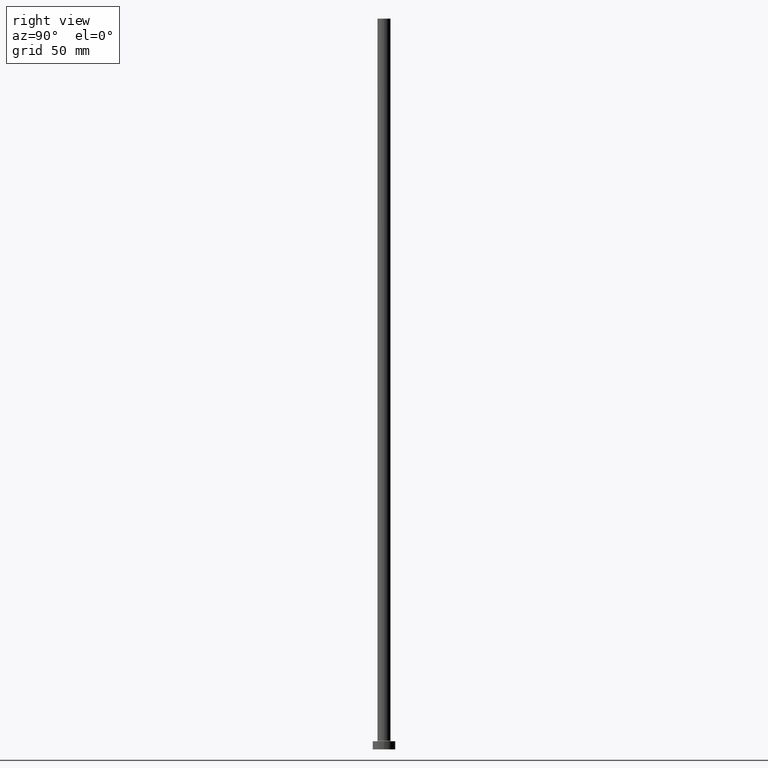
[diagram: clean part render]
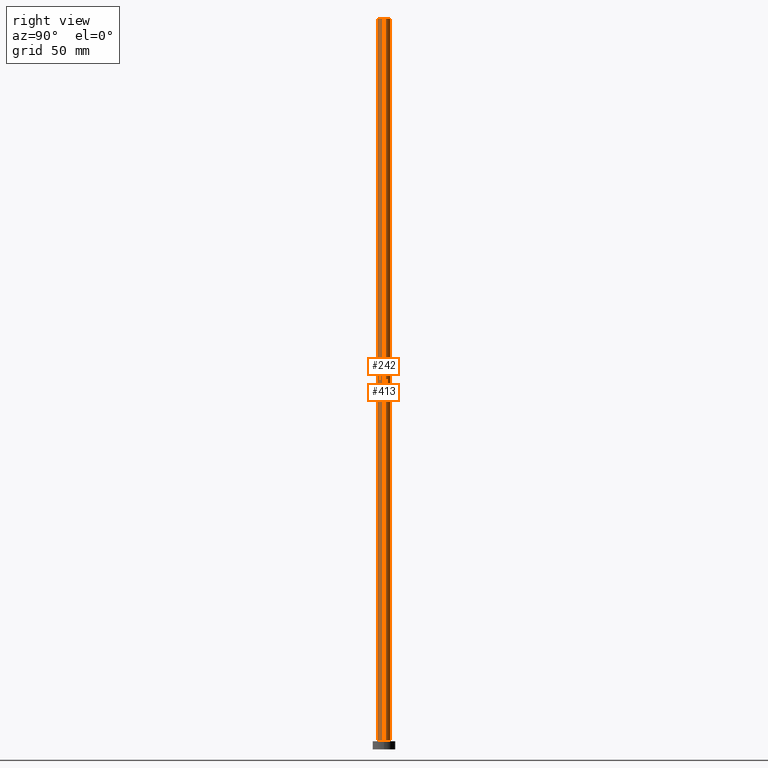
[diagram: same view with one multi-face feature highlighted, each face labeled with its STEP entity id]
A machine part, right view. The highlighted faces form ONE feature: a constant-radius fillet chain: 2 tangent blend faces with common blend radius 4 mm. The faces share edges in the B-rep.
Their STEP definitions:
[1] entity #242 (Cylinder):
#1 = DIRECTION ( 'NONE',  ( 1.000000000000000000, 0.000000000000000000, 0.000000000000000000 ) ) ;
#6 = CARTESIAN_POINT ( 'NONE',  ( 0.000000000000000000, 0.000000000000000000, 450.0000000000000000 ) ) ;
#32 = CIRCLE ( 'NONE', #137, 4.000000000000000000 ) ;
#34 = CARTESIAN_POINT ( 'NONE',  ( -4.000000000000000000, 0.000000000000000000, 450.0000000000000000 ) ) ;
#56 = DIRECTION ( 'NONE',  ( -0.000000000000000000, -0.000000000000000000, -1.000000000000000000 ) ) ;
#65 = EDGE_CURVE ( 'NONE', #318, #441, #423, .T. ) ;
#77 = ORIENTED_EDGE ( 'NONE', *, *, #322, .T. ) ;
#94 = CARTESIAN_POINT ( 'NONE',  ( 0.000000000000000000, 0.000000000000000000, 450.0000000000000000 ) ) ;
#111 = DIRECTION ( 'NONE',  ( 0.000000000000000000, 0.000000000000000000, 1.000000000000000000 ) ) ;
#137 = AXIS2_PLACEMENT_3D ( 'NONE', #457, #348, #1 ) ;
#146 = VERTEX_POINT ( 'NONE', #337 ) ;
#167 = VECTOR ( 'NONE', #171, 1000.000000000000000 ) ;
#171 = DIRECTION ( 'NONE',  ( -0.000000000000000000, -0.000000000000000000, -1.000000000000000000 ) ) ;
#216 = ORIENTED_EDGE ( 'NONE', *, *, #265, .T. ) ;
#220 = VECTOR ( 'NONE', #388, 1000.000000000000000 ) ;
#222 = ORIENTED_EDGE ( 'NONE', *, *, #363, .F. ) ;
#237 = AXIS2_PLACEMENT_3D ( 'NONE', #94, #56, #294 ) ;
#242 = ADVANCED_FACE ( 'NONE', ( #414 ), #415, .T. ) ;
#247 = LINE ( 'NONE', #34, #167 ) ;
#256 = DIRECTION ( 'NONE',  ( 1.000000000000000000, 0.000000000000000000, 0.000000000000000000 ) ) ;
#261 = CARTESIAN_POINT ( 'NONE',  ( 4.000000000000000000, 4.898587196589412829E-16, 450.0000000000000000 ) ) ;
#265 = EDGE_CURVE ( 'NONE', #347, #146, #32, .T. ) ;
#272 = AXIS2_PLACEMENT_3D ( 'NONE', #6, #111, #256 ) ;
#278 = CARTESIAN_POINT ( 'NONE',  ( -4.000000000000000000, 0.000000000000000000, 450.0000000000000000 ) ) ;
#294 = DIRECTION ( 'NONE',  ( -1.000000000000000000, 0.000000000000000000, 0.000000000000000000 ) ) ;
#318 = VERTEX_POINT ( 'NONE', #278 ) ;
#322 = EDGE_CURVE ( 'NONE', #318, #347, #247, .T. ) ;
#337 = CARTESIAN_POINT ( 'NONE',  ( 4.000000000000000000, 4.898587196589412829E-16, 5.500000000000005329 ) ) ;
#340 = CARTESIAN_POINT ( 'NONE',  ( -4.000000000000000000, 0.000000000000000000, 5.500000000000005329 ) ) ;
#347 = VERTEX_POINT ( 'NONE', #340 ) ;
#348 = DIRECTION ( 'NONE',  ( 0.000000000000000000, 0.000000000000000000, 1.000000000000000000 ) ) ;
#363 = EDGE_CURVE ( 'NONE', #441, #146, #417, .T. ) ;
#388 = DIRECTION ( 'NONE',  ( -0.000000000000000000, -0.000000000000000000, -1.000000000000000000 ) ) ;
#411 = ORIENTED_EDGE ( 'NONE', *, *, #65, .F. ) ;
#414 = FACE_OUTER_BOUND ( 'NONE', #443, .T. ) ;
#415 = CYLINDRICAL_SURFACE ( 'NONE', #237, 4.000000000000000000 ) ;
#417 = LINE ( 'NONE', #420, #220 ) ;
#420 = CARTESIAN_POINT ( 'NONE',  ( 4.000000000000000000, 4.898587196589412829E-16, 450.0000000000000000 ) ) ;
#423 = CIRCLE ( 'NONE', #272, 4.000000000000000000 ) ;
#441 = VERTEX_POINT ( 'NONE', #261 ) ;
#443 = EDGE_LOOP ( 'NONE', ( #222, #411, #77, #216 ) ) ;
#457 = CARTESIAN_POINT ( 'NONE',  ( 0.000000000000000000, 0.000000000000000000, 5.500000000000005329 ) ) ;
[2] entity #413 (Cylinder):
#2 = CIRCLE ( 'NONE', #195, 4.000000000000000000 ) ;
#8 = CYLINDRICAL_SURFACE ( 'NONE', #263, 4.000000000000000000 ) ;
#34 = CARTESIAN_POINT ( 'NONE',  ( -4.000000000000000000, 0.000000000000000000, 450.0000000000000000 ) ) ;
#106 = DIRECTION ( 'NONE',  ( -0.000000000000000000, -0.000000000000000000, -1.000000000000000000 ) ) ;
#110 = CARTESIAN_POINT ( 'NONE',  ( 0.000000000000000000, 0.000000000000000000, 450.0000000000000000 ) ) ;
#113 = EDGE_LOOP ( 'NONE', ( #445, #395, #433, #357 ) ) ;
#125 = DIRECTION ( 'NONE',  ( 0.000000000000000000, 0.000000000000000000, 1.000000000000000000 ) ) ;
#141 = DIRECTION ( 'NONE',  ( 1.000000000000000000, 0.000000000000000000, 0.000000000000000000 ) ) ;
#142 = CARTESIAN_POINT ( 'NONE',  ( 0.000000000000000000, 0.000000000000000000, 5.500000000000005329 ) ) ;
#146 = VERTEX_POINT ( 'NONE', #337 ) ;
#167 = VECTOR ( 'NONE', #171, 1000.000000000000000 ) ;
#171 = DIRECTION ( 'NONE',  ( -0.000000000000000000, -0.000000000000000000, -1.000000000000000000 ) ) ;
#195 = AXIS2_PLACEMENT_3D ( 'NONE', #142, #209, #459 ) ;
#209 = DIRECTION ( 'NONE',  ( 0.000000000000000000, 0.000000000000000000, 1.000000000000000000 ) ) ;
#217 = FACE_OUTER_BOUND ( 'NONE', #113, .T. ) ;
#220 = VECTOR ( 'NONE', #388, 1000.000000000000000 ) ;
#247 = LINE ( 'NONE', #34, #167 ) ;
#248 = CIRCLE ( 'NONE', #402, 4.000000000000000000 ) ;
#251 = EDGE_CURVE ( 'NONE', #441, #318, #248, .T. ) ;
#254 = DIRECTION ( 'NONE',  ( -1.000000000000000000, 0.000000000000000000, 0.000000000000000000 ) ) ;
#261 = CARTESIAN_POINT ( 'NONE',  ( 4.000000000000000000, 4.898587196589412829E-16, 450.0000000000000000 ) ) ;
#263 = AXIS2_PLACEMENT_3D ( 'NONE', #110, #106, #254 ) ;
#278 = CARTESIAN_POINT ( 'NONE',  ( -4.000000000000000000, 0.000000000000000000, 450.0000000000000000 ) ) ;
#287 = EDGE_CURVE ( 'NONE', #146, #347, #2, .T. ) ;
#318 = VERTEX_POINT ( 'NONE', #278 ) ;
#322 = EDGE_CURVE ( 'NONE', #318, #347, #247, .T. ) ;
#337 = CARTESIAN_POINT ( 'NONE',  ( 4.000000000000000000, 4.898587196589412829E-16, 5.500000000000005329 ) ) ;
#340 = CARTESIAN_POINT ( 'NONE',  ( -4.000000000000000000, 0.000000000000000000, 5.500000000000005329 ) ) ;
#347 = VERTEX_POINT ( 'NONE', #340 ) ;
#357 = ORIENTED_EDGE ( 'NONE', *, *, #322, .F. ) ;
#363 = EDGE_CURVE ( 'NONE', #441, #146, #417, .T. ) ;
#388 = DIRECTION ( 'NONE',  ( -0.000000000000000000, -0.000000000000000000, -1.000000000000000000 ) ) ;
#395 = ORIENTED_EDGE ( 'NONE', *, *, #363, .T. ) ;
#402 = AXIS2_PLACEMENT_3D ( 'NONE', #446, #125, #141 ) ;
#413 = ADVANCED_FACE ( 'NONE', ( #217 ), #8, .T. ) ;
#417 = LINE ( 'NONE', #420, #220 ) ;
#420 = CARTESIAN_POINT ( 'NONE',  ( 4.000000000000000000, 4.898587196589412829E-16, 450.0000000000000000 ) ) ;
#433 = ORIENTED_EDGE ( 'NONE', *, *, #287, .T. ) ;
#441 = VERTEX_POINT ( 'NONE', #261 ) ;
#445 = ORIENTED_EDGE ( 'NONE', *, *, #251, .F. ) ;
#446 = CARTESIAN_POINT ( 'NONE',  ( 0.000000000000000000, 0.000000000000000000, 450.0000000000000000 ) ) ;
#459 = DIRECTION ( 'NONE',  ( 1.000000000000000000, 0.000000000000000000, 0.000000000000000000 ) ) ;